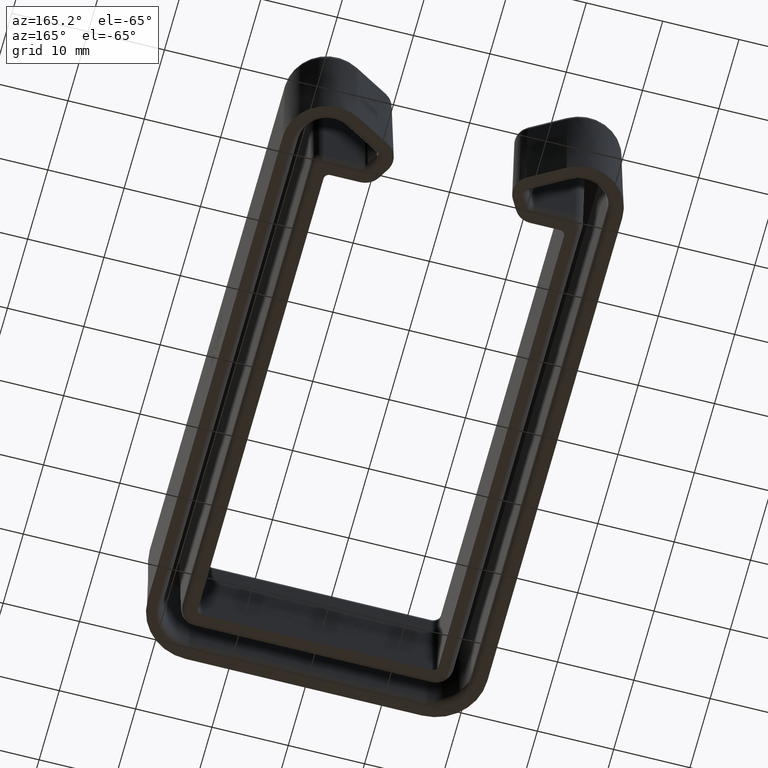
[diagram: clean part render]
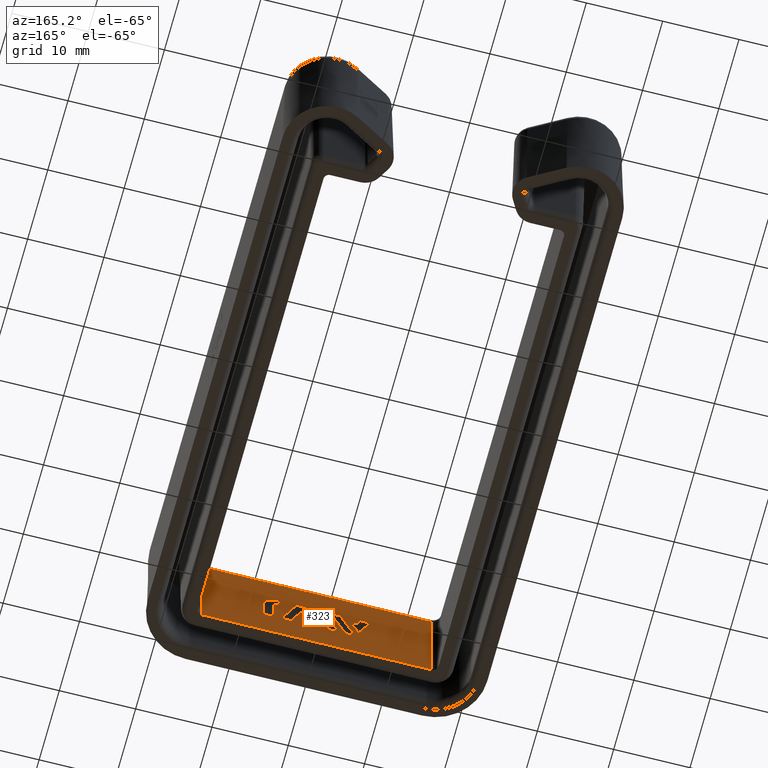
[diagram: same view with one face highlighted and labeled with its STEP entity id]
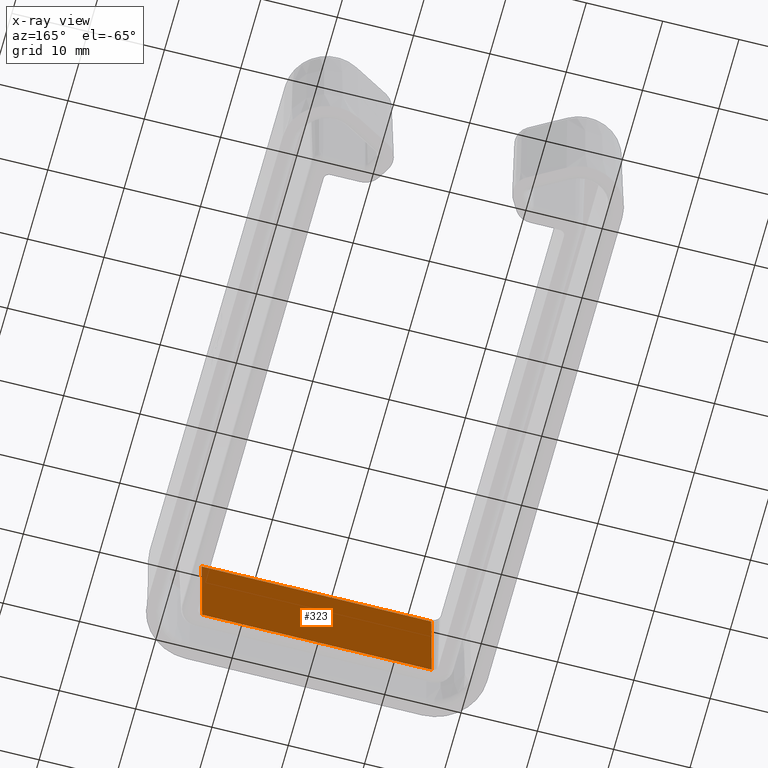
[diagram: x-ray of the same camera — body ghosted, the highlighted face saturated]
A machine part, auxiliary view. The second image highlights one B-rep face of the part: STEP entity #323.
The next image is the same camera in x-ray: the body ghosted, the highlighted face saturated — about 1% of this face is hidden behind the body in this view.
In plain terms, the highlighted planar face has unit normal (0, -0.9998, -0.0175).
Its self-contained STEP definition (entity closure, byte-faithful):
#323=ADVANCED_FACE('',(#716),#717,.F.);
#716=FACE_OUTER_BOUND('',#1237,.T.);
#717=PLANE('',#1238);
#1237=EDGE_LOOP('',(#3047,#3048,#3049,#3050));
#1238=AXIS2_PLACEMENT_3D('',#3051,#3052,#3053);
#3047=ORIENTED_EDGE('',*,*,#4021,.T.);
#3048=ORIENTED_EDGE('',*,*,#4022,.T.);
#3049=ORIENTED_EDGE('',*,*,#3955,.F.);
#3050=ORIENTED_EDGE('',*,*,#3954,.T.);
#3051=CARTESIAN_POINT('',(15.0499999999968,3.95000000001254,17.0));
#3052=DIRECTION('',(8.32540449210762E-13,-0.999847695156391,-0.0174524064372835));
#3053=DIRECTION('',(0.0,0.0174524064372835,-0.999847695156391));
#3954=EDGE_CURVE('',#4747,#4789,#4791,.F.);
#3955=EDGE_CURVE('',#4747,#4792,#4793,.T.);
#4021=EDGE_CURVE('',#4789,#4898,#4900,.T.);
#4022=EDGE_CURVE('',#4898,#4792,#4901,.F.);
#4747=VERTEX_POINT('',#6824);
#4789=VERTEX_POINT('',#6877);
#4791=LINE('',#6879,#6880);
#4792=VERTEX_POINT('',#6881);
#4793=LINE('',#6882,#6883);
#4898=VERTEX_POINT('',#7031);
#4900=LINE('',#7033,#7034);
#4901=LINE('',#7035,#7036);
#6824=CARTESIAN_POINT('',(15.0499999999966,4.24673610379222,0.0));
#6877=CARTESIAN_POINT('',(-15.0500000000035,4.24673610376717,0.0));
#6879=CARTESIAN_POINT('',(15.0499999999966,4.24673610379223,0.0));
#6880=VECTOR('',#7604,1000.0);
#6881=CARTESIAN_POINT('',(15.0499999999967,3.98430086409393,15.0349048128745));
#6882=CARTESIAN_POINT('',(15.0499999999968,3.95000000001253,17.0));
#6883=VECTOR('',#7605,1000.0);
#7031=CARTESIAN_POINT('',(-15.0500000000032,3.98430086406887,15.0349048128745));
#7033=CARTESIAN_POINT('',(-15.0500000000032,3.94999999998747,17.0));
#7034=VECTOR('',#7715,1000.0);
#7035=CARTESIAN_POINT('',(15.0499999999967,3.98430086409393,15.0349048128745));
#7036=VECTOR('',#7716,1000.0);
#7604=DIRECTION('',(1.0,8.32667268468864E-13,0.0));
#7605=DIRECTION('',(1.45320475963413E-14,-0.0174524064372835,0.999847695156391));
#7715=DIRECTION('',(1.45320475963413E-14,-0.0174524064372835,0.999847695156391));
#7716=DIRECTION('',(-1.0,-8.32667268468864E-13,3.15496288517813E-30));